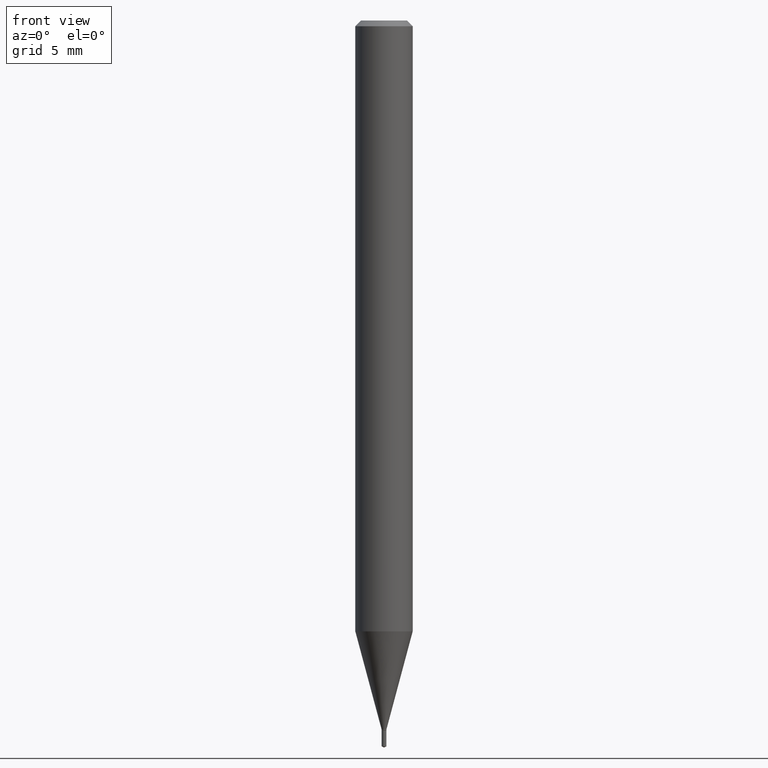
[diagram: clean part render]
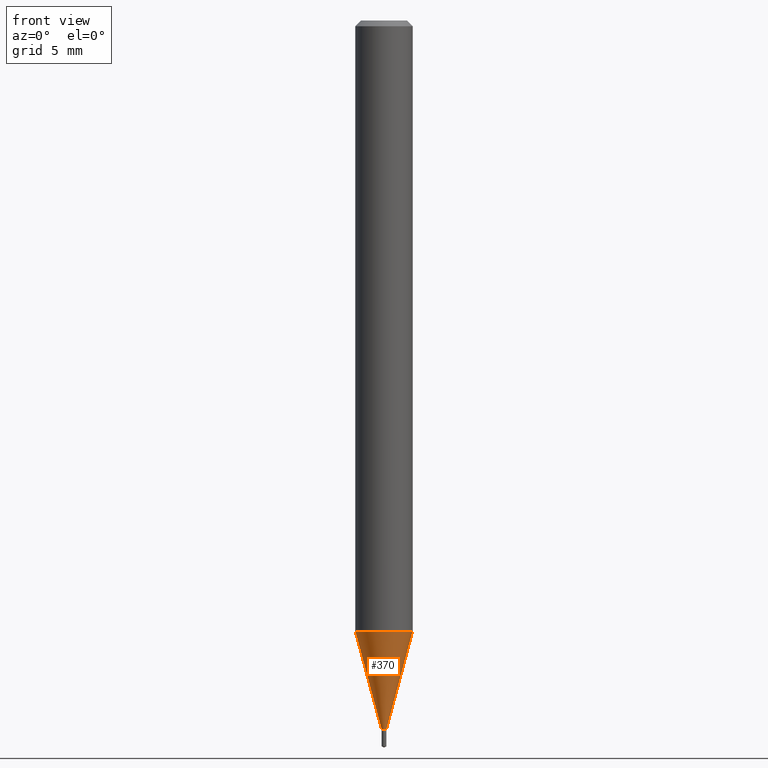
[diagram: same view with one face highlighted and labeled with its STEP entity id]
A machine part, front view. The second image highlights one B-rep face of the part: STEP entity #370.
In plain terms, the highlighted conical surface has half-angle 15 deg.
Its self-contained STEP definition (entity closure, byte-faithful):
#4 = CARTESIAN_POINT ( 'NONE',  ( 3.568428081985351240E-29, -5.094769569639917175E-15, -1.459199999999999831 ) ) ;
#7 = ORIENTED_EDGE ( 'NONE', *, *, #74, .F. ) ;
#19 = CARTESIAN_POINT ( 'NONE',  ( 3.074221942927981307E-29, -4.389174181264353445E-15, -1.257109448770144855 ) ) ;
#40 = ORIENTED_EDGE ( 'NONE', *, *, #350, .T. ) ;
#58 = CARTESIAN_POINT ( 'NONE',  ( 0.004899999999999998107, -5.128986086760580222E-15, -1.459199999999999831 ) ) ;
#74 = EDGE_CURVE ( 'NONE', #162, #302, #371, .T. ) ;
#75 = DIRECTION ( 'NONE',  ( 0.2588190451025211836, 1.565188264969622559E-15, 0.9659258262890679791 ) ) ;
#84 = VECTOR ( 'NONE', #316, 39.37007874015748854 ) ;
#86 = CARTESIAN_POINT ( 'NONE',  ( -0.05905000000000017180, -3.969598695798013952E-15, -1.257109448770144855 ) ) ;
#90 = FACE_OUTER_BOUND ( 'NONE', #308, .T. ) ;
#98 = LINE ( 'NONE', #413, #483 ) ;
#131 = EDGE_CURVE ( 'NONE', #302, #232, #243, .T. ) ;
#139 = DIRECTION ( 'NONE',  ( 1.000000000000000000, -6.982962677686196502E-15, 0.000000000000000000 ) ) ;
#140 = CARTESIAN_POINT ( 'NONE',  ( -0.004899999999999998107, -5.061698716257093659E-15, -1.459199999999999831 ) ) ;
#141 = EDGE_CURVE ( 'NONE', #397, #232, #98, .T. ) ;
#156 = CIRCLE ( 'NONE', #368, 0.004899999999999998107 ) ;
#162 = VERTEX_POINT ( 'NONE', #140 ) ;
#168 = AXIS2_PLACEMENT_3D ( 'NONE', #19, #176, #435 ) ;
#176 = DIRECTION ( 'NONE',  ( -2.445468806185136597E-29, 3.491481338843145583E-15, 1.000000000000000000 ) ) ;
#204 = DIRECTION ( 'NONE',  ( -2.445468806185136597E-29, 3.491481338843145583E-15, 1.000000000000000000 ) ) ;
#210 = CARTESIAN_POINT ( 'NONE',  ( -0.004899999999999998107, -5.059952975587672945E-15, -1.459199999999999831 ) ) ;
#220 = ORIENTED_EDGE ( 'NONE', *, *, #131, .F. ) ;
#232 = VERTEX_POINT ( 'NONE', #378 ) ;
#238 = AXIS2_PLACEMENT_3D ( 'NONE', #347, #311, #139 ) ;
#243 = CIRCLE ( 'NONE', #168, 0.05905000000000017180 ) ;
#302 = VERTEX_POINT ( 'NONE', #86 ) ;
#308 = EDGE_LOOP ( 'NONE', ( #7, #40, #436, #220 ) ) ;
#311 = DIRECTION ( 'NONE',  ( -2.445468806185136597E-29, 3.491481338843145583E-15, 1.000000000000000000 ) ) ;
#316 = DIRECTION ( 'NONE',  ( -0.2588190451025211836, 5.211531920934547886E-15, 0.9659258262890679791 ) ) ;
#344 = CONICAL_SURFACE ( 'NONE', #238, 0.004899999999999998107, 0.2617993877991499074 ) ;
#347 = CARTESIAN_POINT ( 'NONE',  ( 3.568428081985351240E-29, -5.094769569639917175E-15, -1.459199999999999831 ) ) ;
#350 = EDGE_CURVE ( 'NONE', #162, #397, #156, .T. ) ;
#368 = AXIS2_PLACEMENT_3D ( 'NONE', #4, #204, #395 ) ;
#370 = ADVANCED_FACE ( 'NONE', ( #90 ), #344, .T. ) ;
#371 = LINE ( 'NONE', #210, #84 ) ;
#378 = CARTESIAN_POINT ( 'NONE',  ( 0.05905000000000017180, -4.801518127381729154E-15, -1.257109448770144855 ) ) ;
#395 = DIRECTION ( 'NONE',  ( 1.000000000000000000, -6.982962677686196502E-15, 0.000000000000000000 ) ) ;
#397 = VERTEX_POINT ( 'NONE', #58 ) ;
#413 = CARTESIAN_POINT ( 'NONE',  ( 0.004899999999999998107, -5.128986086760580222E-15, -1.459199999999999831 ) ) ;
#435 = DIRECTION ( 'NONE',  ( 1.000000000000000000, -6.982962677686268288E-15, 0.000000000000000000 ) ) ;
#436 = ORIENTED_EDGE ( 'NONE', *, *, #141, .T. ) ;
#483 = VECTOR ( 'NONE', #75, 39.37007874015748854 ) ;